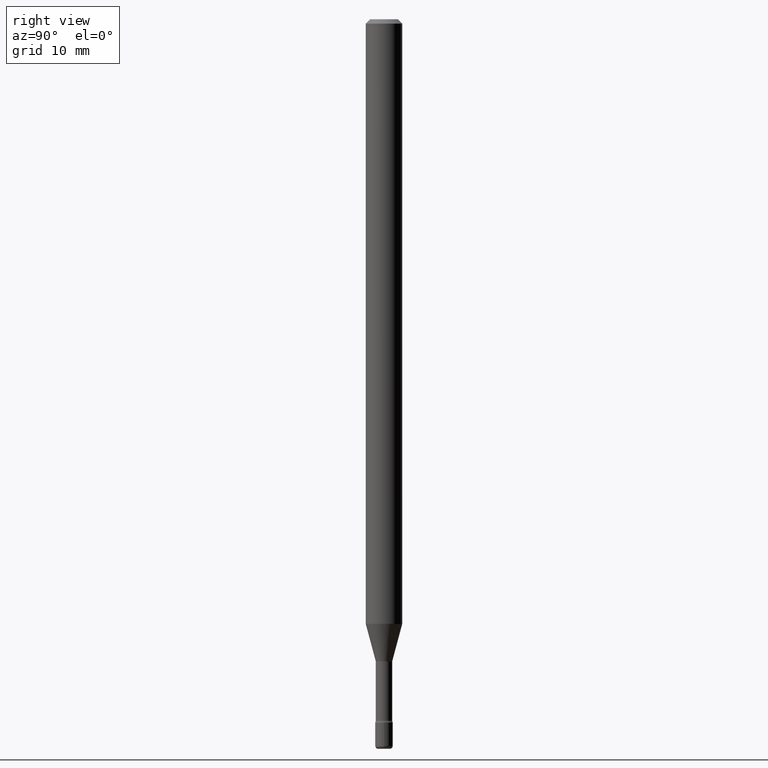
[diagram: clean part render]
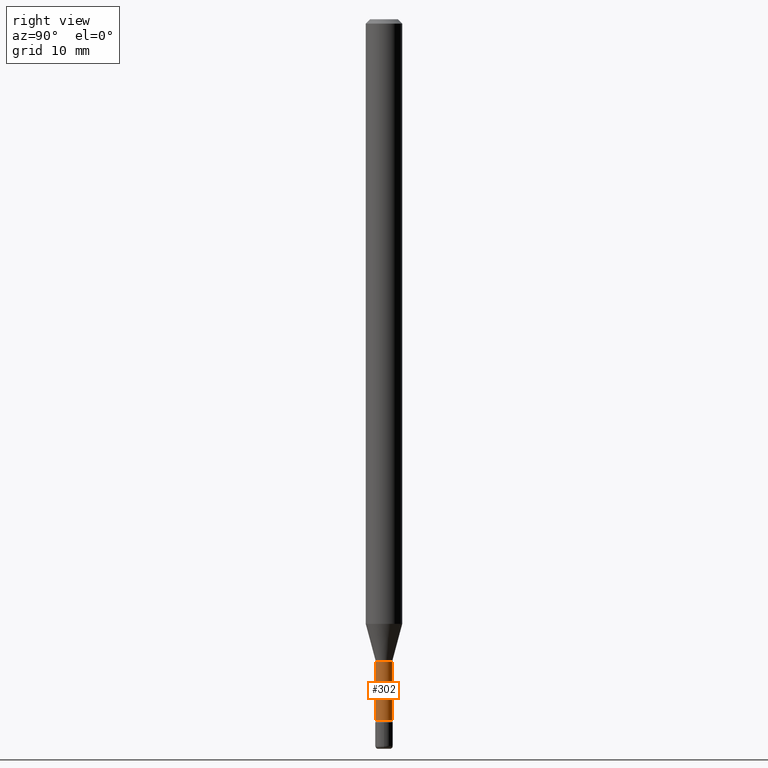
[diagram: same view with one face highlighted and labeled with its STEP entity id]
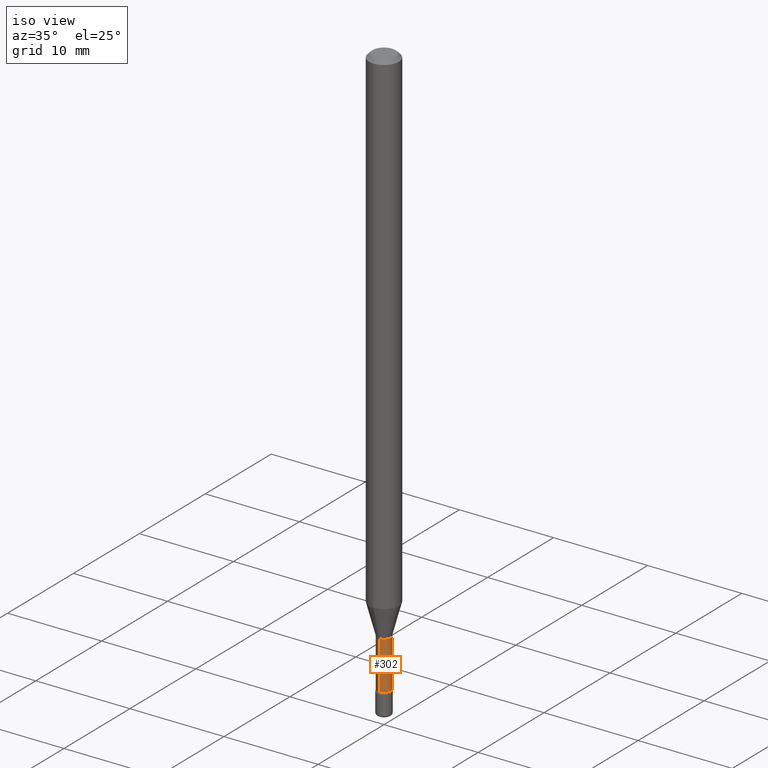
[diagram: same view with one face highlighted and labeled with its STEP entity id]
A machine part, right view. The second image highlights one B-rep face of the part: STEP entity #302.
A second angle (iso view) of the same face is appended — the face is thin or edge-on in the first view.
In plain terms, the highlighted cylindrical surface (edge-blend (fillet) strip) has radius 0.7163 mm, axis along (-0, 0, 1).
Its self-contained STEP definition (entity closure, byte-faithful):
#18 = CYLINDRICAL_SURFACE ( 'NONE', #338, 0.02820000000000003060 ) ;
#26 = VERTEX_POINT ( 'NONE', #40 ) ;
#40 = CARTESIAN_POINT ( 'NONE',  ( -1.969195475106944252E-16, -0.02820000000000845788, -2.402875394747777893 ) ) ;
#61 = LINE ( 'NONE', #234, #494 ) ;
#117 = CARTESIAN_POINT ( 'NONE',  ( -1.169113584055446105E-44, 1.669184350826100908E-30, 4.780733988912460139E-16 ) ) ;
#140 = VECTOR ( 'NONE', #334, 39.37007874015748143 ) ;
#162 = DIRECTION ( 'NONE',  ( -6.982962677686265922E-15, -1.000000000000000000, 0.000000000000000000 ) ) ;
#173 = FACE_OUTER_BOUND ( 'NONE', #543, .T. ) ;
#202 = CIRCLE ( 'NONE', #419, 0.02819999999999999590 ) ;
#205 = CARTESIAN_POINT ( 'NONE',  ( 5.384916831450678257E-29, -7.688073430798666133E-15, -2.201974787463810923 ) ) ;
#226 = ORIENTED_EDGE ( 'NONE', *, *, #251, .T. ) ;
#234 = CARTESIAN_POINT ( 'NONE',  ( -1.969195475107528995E-16, -0.02820000000000003060, 5.765321423713349437E-16 ) ) ;
#240 = DIRECTION ( 'NONE',  ( -2.445494318149261734E-29, 3.491444804258467311E-15, 1.000000000000000000 ) ) ;
#249 = VERTEX_POINT ( 'NONE', #549 ) ;
#251 = EDGE_CURVE ( 'NONE', #307, #249, #370, .T. ) ;
#267 = EDGE_CURVE ( 'NONE', #495, #249, #202, .T. ) ;
#279 = DIRECTION ( 'NONE',  ( -2.445494318149262015E-29, 3.491444804258467311E-15, 1.000000000000000000 ) ) ;
#281 = EDGE_CURVE ( 'NONE', #26, #307, #297, .T. ) ;
#290 = DIRECTION ( 'NONE',  ( -6.982962677686266711E-15, -1.000000000000000000, 0.000000000000000000 ) ) ;
#297 = CIRCLE ( 'NONE', #520, 0.02820000000000006876 ) ;
#302 = ADVANCED_FACE ( 'NONE', ( #173 ), #18, .T. ) ;
#307 = VERTEX_POINT ( 'NONE', #505 ) ;
#327 = DIRECTION ( 'NONE',  ( -2.445494318149261734E-29, 3.491444804258467311E-15, 1.000000000000000000 ) ) ;
#334 = DIRECTION ( 'NONE',  ( -2.445494318149262015E-29, 3.491444804258467311E-15, 1.000000000000000000 ) ) ;
#338 = AXIS2_PLACEMENT_3D ( 'NONE', #117, #327, #425 ) ;
#353 = ORIENTED_EDGE ( 'NONE', *, *, #267, .F. ) ;
#370 = LINE ( 'NONE', #559, #140 ) ;
#375 = CARTESIAN_POINT ( 'NONE',  ( 5.876218125076356369E-29, -8.389506812272643488E-15, -2.402875394747777893 ) ) ;
#419 = AXIS2_PLACEMENT_3D ( 'NONE', #205, #240, #162 ) ;
#425 = DIRECTION ( 'NONE',  ( -6.982962677686265133E-15, -1.000000000000000000, 3.491444804258466128E-15 ) ) ;
#494 = VECTOR ( 'NONE', #279, 39.37007874015748143 ) ;
#495 = VERTEX_POINT ( 'NONE', #561 ) ;
#505 = CARTESIAN_POINT ( 'NONE',  ( 2.067679361062480290E-16, 0.02819999999999168311, -2.402875394747777893 ) ) ;
#511 = ORIENTED_EDGE ( 'NONE', *, *, #555, .F. ) ;
#520 = AXIS2_PLACEMENT_3D ( 'NONE', #375, #557, #290 ) ;
#527 = ORIENTED_EDGE ( 'NONE', *, *, #281, .T. ) ;
#543 = EDGE_LOOP ( 'NONE', ( #527, #226, #353, #511 ) ) ;
#549 = CARTESIAN_POINT ( 'NONE',  ( 2.003730514844070921E-16, 0.02819999999999231108, -2.201974787463810923 ) ) ;
#555 = EDGE_CURVE ( 'NONE', #26, #495, #61, .T. ) ;
#557 = DIRECTION ( 'NONE',  ( -2.445494318149261734E-29, 3.491444804258467311E-15, 1.000000000000000000 ) ) ;
#559 = CARTESIAN_POINT ( 'NONE',  ( 2.003730514843484452E-16, 0.02820000000000003060, 3.796146554111571827E-16 ) ) ;
#561 = CARTESIAN_POINT ( 'NONE',  ( -1.969195475106988379E-16, -0.02820000000000768420, -2.201974787463810923 ) ) ;